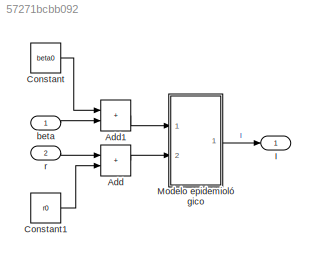
MODEL slx_57271bcbb092
KIND model
CONFIG AbsTol = auto
CONFIG EnableMultiTasking = off
CONFIG FixedStep = auto
CONFIG MaxStep = 1e-2
CONFIG MinStep = auto
CONFIG RelTol = 1e-3
CONFIG SampleTimeConstraint = Unconstrained
CONFIG Solver = VariableStepAuto
CONFIG SolverName = VariableStepAuto
CONFIG StartTime = 0.0
CONFIG StopTime = 100
BLOCK [Sum] Add
  IconShape = rectangular
  Ports = [2, 1]
BLOCK [Sum] Add1
  IconShape = rectangular
  Ports = [2, 1]
BLOCK [Constant] Constant
  Value = beta0
BLOCK [Constant] Constant1
  Value = r0
BLOCK [Outport] I
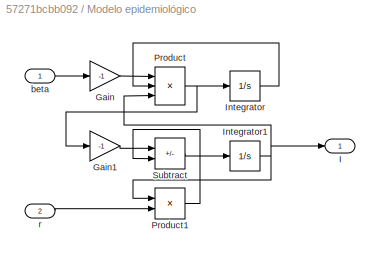
BLOCK [SubSystem] Modelo epidemiológico
  Ports = [2, 1]
  RequestExecContextInheritance = off
BLOCK [Gain] Modelo epidemiológico/Gain
  Gain = -1
BLOCK [Gain] Modelo epidemiológico/Gain1
  Gain = -1
BLOCK [Outport] Modelo epidemiológico/I
BLOCK [Integrator] Modelo epidemiológico/Integrator
  InitialCondition = S0
  Ports = [1, 1]
BLOCK [Integrator] Modelo epidemiológico/Integrator1
  InitialCondition = I0
  Ports = [1, 1]
BLOCK [Product] Modelo epidemiológico/Product
  Inputs = 3
  Ports = [3, 1]
BLOCK [Product] Modelo epidemiológico/Product1
  Ports = [2, 1]
BLOCK [Sum] Modelo epidemiológico/Subtract
  IconShape = rectangular
  Inputs = +-
  Ports = [2, 1]
BLOCK [Inport] Modelo epidemiológico/beta
BLOCK [Inport] Modelo epidemiológico/r
  Port = 2
BLOCK [Inport] beta
BLOCK [Inport] r
  Port = 2
LINE Add1:1 -> Modelo epidemiológico:1
LINE Add:1 -> Modelo epidemiológico:2
LINE Constant1:1 -> Add:2
LINE Constant:1 -> Add1:1
LINE Modelo epidemiológico/Gain1:1 -> Modelo epidemiológico/Subtract:1
LINE Modelo epidemiológico/Gain:1 -> Modelo epidemiológico/Product:1
NET Modelo epidemiológico/Integrator1:1 -> Modelo epidemiológico/I:1, Modelo epidemiológico/Product1:1, Modelo epidemiológico/Product:3
LINE Modelo epidemiológico/Integrator:1 -> Modelo epidemiológico/Product:2
LINE Modelo epidemiológico/Product1:1 -> Modelo epidemiológico/Subtract:2
NET Modelo epidemiológico/Product:1 -> Modelo epidemiológico/Gain1:1, Modelo epidemiológico/Integrator:1
LINE Modelo epidemiológico/Subtract:1 -> Modelo epidemiológico/Integrator1:1
LINE Modelo epidemiológico/beta:1 -> Modelo epidemiológico/Gain:1
LINE Modelo epidemiológico/r:1 -> Modelo epidemiológico/Product1:2
LINE Modelo epidemiológico:1 -> I:1
LINE beta:1 -> Add1:2
LINE r:1 -> Add:1
note: NET lines group one-source signal fan-out (src -> all destinations, sorted); 1:1 wires keep LINE
